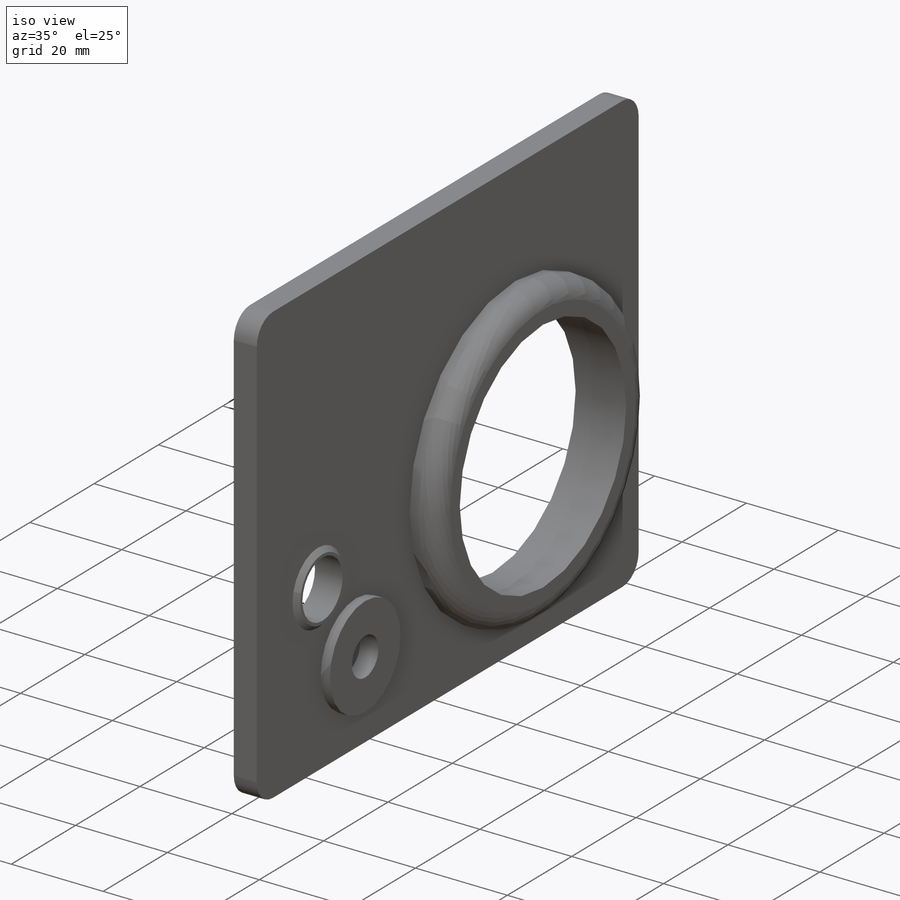
[diagram: iso view]
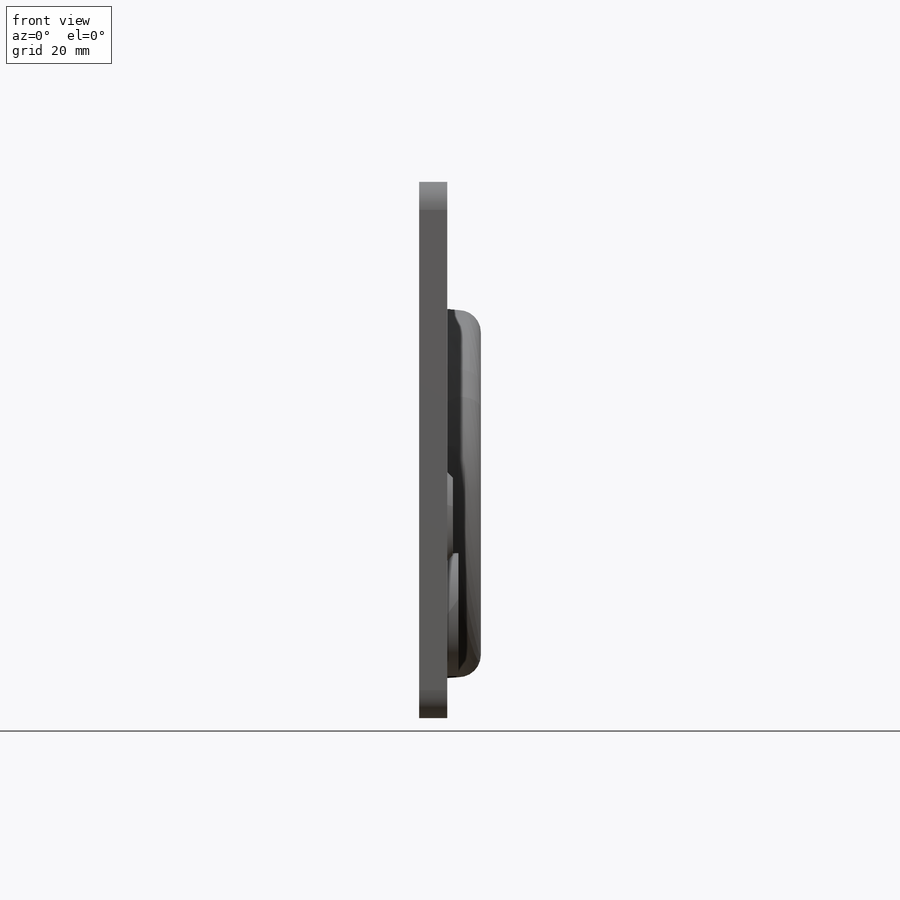
[diagram: front view]
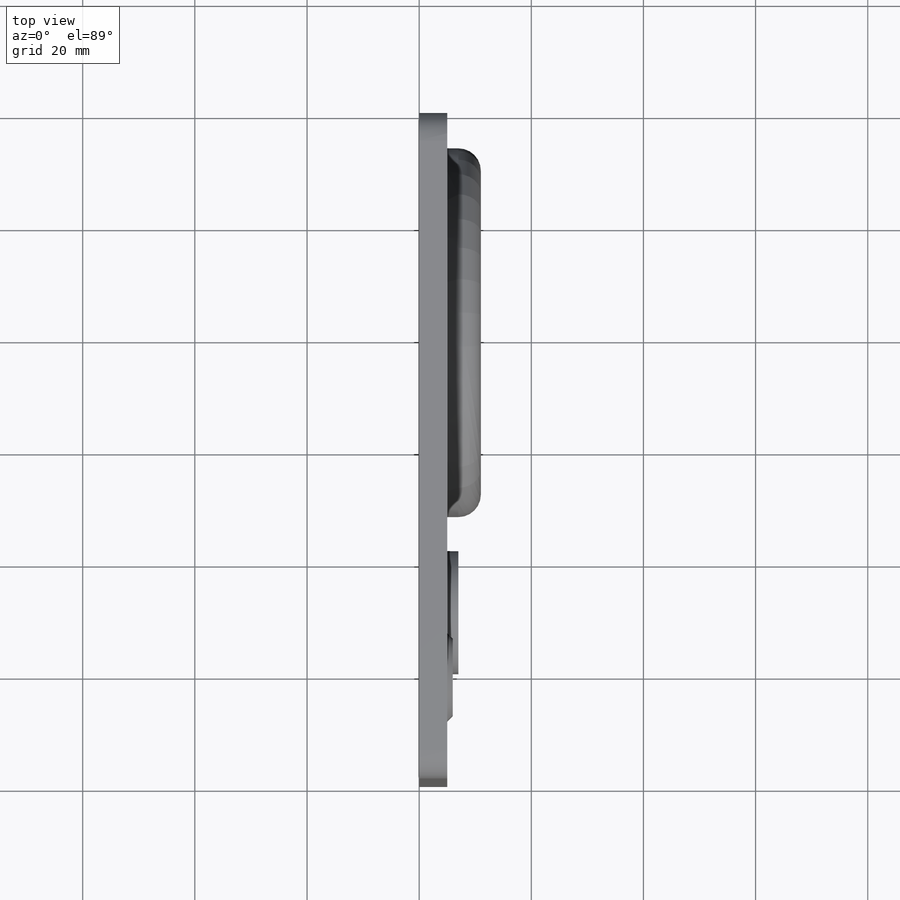
[diagram: top view]
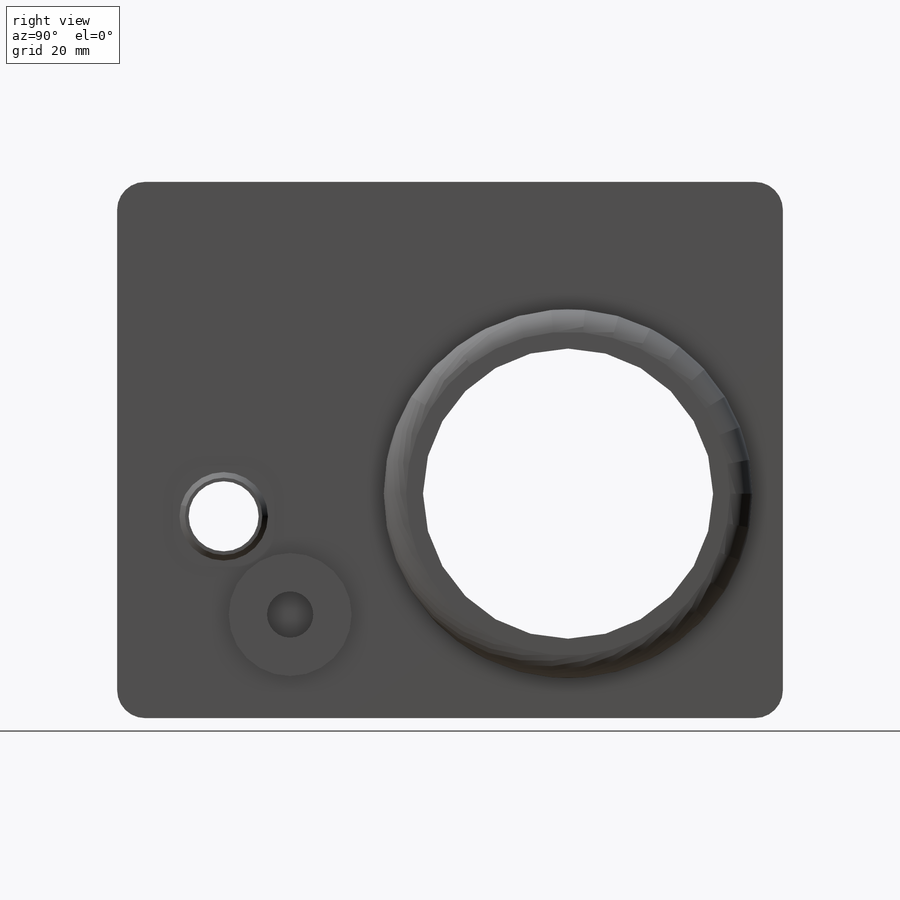
[diagram: right view]
SOLIDWORKS PART (.sldprt)
format: sldprt  version: not decoded by parser v0  size: 253,952 bytes
history: native  units: mm
features: sketch x5, extrude x5, fillet x2, material x1, chamfer x1 (+13 scaffold rows collapsed)
feature tree (27):
  scaffold x13  (default folders/planes/origin — collapsed)
  material  "Material <not specified>"
  sketch  "Sketch1"  dims[D1=4.0mm]
  extrude  "Boss-Extrude1"  Depth=5mm
  extrude  "Boss-Extrude2"  [1 undecoded]
  sketch  "Sketch1<3>"  dims[D1=11.0mm]
  fillet  "Fillet1"  Radius=4mm
  extrude  "Boss-Extrude3"  [1 undecoded]
  sketch  "Sketch1<4>"  dims[D1=7.0mm]
  extrude  "Boss-Extrude4"  [1 undecoded]
  sketch  "Sketch1<5>"  dims[D1=6.0mm]
  chamfer  "Chamfer1"  Distance=1mm Angle=45deg
  fillet  "Fillet2"  Radius=5mm
  extrude  "Boss-Extrude5"  [1 undecoded]
  sketch  "Sketch1<6>"  dims[D1=3.0mm]
decode coverage: 9 of 13 modeling features carry decoded parameters
note: 4 parameter values undecoded
summary: no parameter record found for 4 features
note: suppression state not decoded; provenance and decode notes live in map.json
